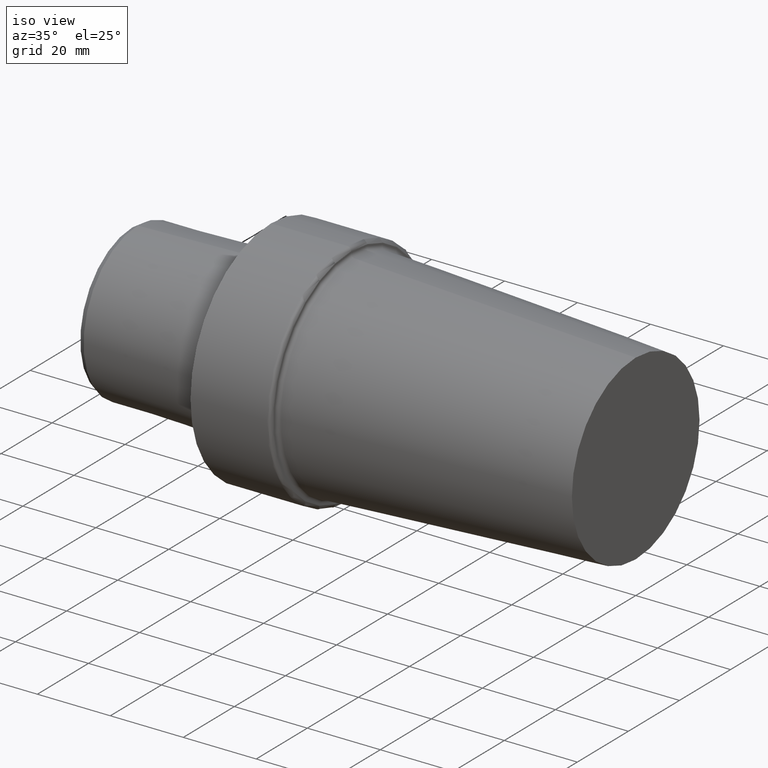
[diagram: clean part render]
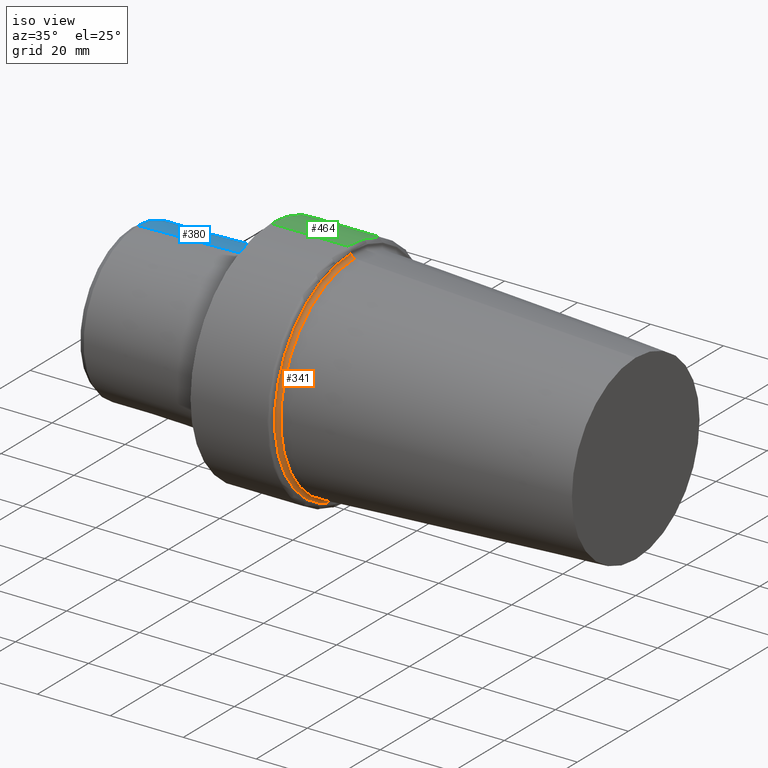
[diagram: same view with three faces highlighted in distinct colors, each labeled with its STEP entity id]
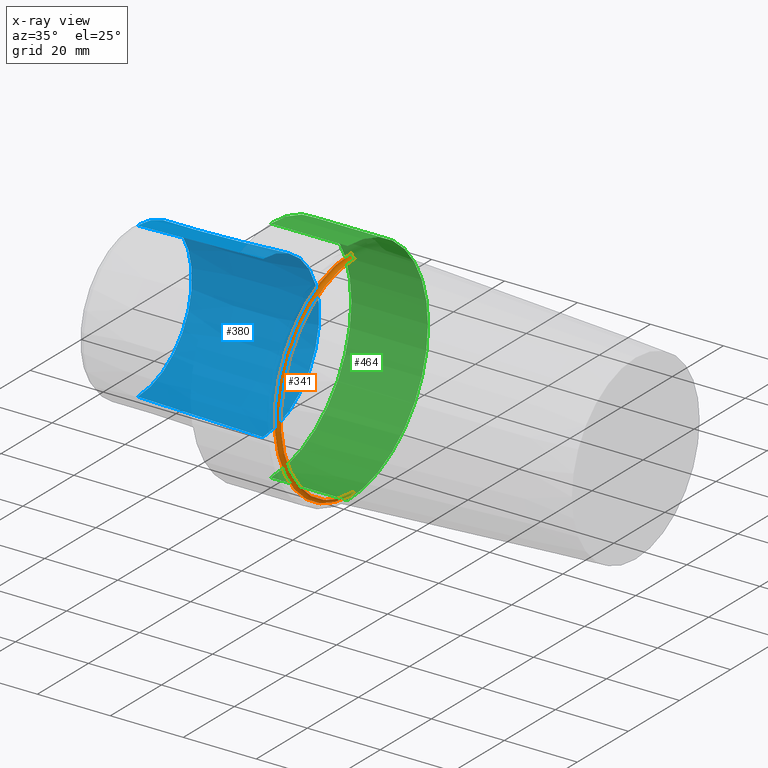
[diagram: x-ray of the same camera — body ghosted, the three highlighted faces saturated]
A machine part, iso view with three faces highlighted in distinct colors.
The next image is the same camera in x-ray (body ghosted, the three faces saturated) — at least one of them is partly hidden behind the body in this view.
Their STEP definitions:

[orange] entity #341 — the highlighted toroidal blend (fillet) surface has major radius 29.95 mm and minor (blend) radius 1 mm.
#7 = FACE_OUTER_BOUND ( 'NONE', #313, .T. ) ;
#18 = DIRECTION ( 'NONE',  ( 0.000000000000000000, 0.000000000000000000, -1.000000000000000000 ) ) ;
#23 = CARTESIAN_POINT ( 'NONE',  ( 22.99999997490129999, 0.000000000000000000, 29.95003198586706716 ) ) ;
#24 = CIRCLE ( 'NONE', #217, 0.9999999989800008038 ) ;
#30 = CIRCLE ( 'NONE', #281, 0.9999999989800008038 ) ;
#34 = CIRCLE ( 'NONE', #532, 29.95003198228931396 ) ;
#42 = AXIS2_PLACEMENT_3D ( 'NONE', #128, #299, #91 ) ;
#58 = CIRCLE ( 'NONE', #116, 28.95134432330797480 ) ;
#91 = DIRECTION ( 'NONE',  ( 0.000000000000000000, 0.000000000000000000, 1.000000000000000000 ) ) ;
#94 = EDGE_CURVE ( 'NONE', #156, #395, #58, .T. ) ;
#95 = DIRECTION ( 'NONE',  ( 0.000000000000000000, 0.000000000000000000, 1.000000000000000000 ) ) ;
#99 = DIRECTION ( 'NONE',  ( -1.000000000000000000, 0.000000000000000000, 0.000000000000000000 ) ) ;
#103 = CARTESIAN_POINT ( 'NONE',  ( 21.99999997592130185, 0.000000000000000000, 0.000000000000000000 ) ) ;
#116 = AXIS2_PLACEMENT_3D ( 'NONE', #389, #427, #203 ) ;
#128 = CARTESIAN_POINT ( 'NONE',  ( 22.99999997490129999, 0.000000000000000000, 0.000000000000000000 ) ) ;
#156 = VERTEX_POINT ( 'NONE', #505 ) ;
#171 = CARTESIAN_POINT ( 'NONE',  ( 22.94878522495353579, 0.000000000000000000, 28.95134432330797480 ) ) ;
#191 = ORIENTED_EDGE ( 'NONE', *, *, #500, .T. ) ;
#203 = DIRECTION ( 'NONE',  ( 0.000000000000000000, 0.000000000000000000, 1.000000000000000000 ) ) ;
#215 = CARTESIAN_POINT ( 'NONE',  ( 21.99999997592130185, 0.000000000000000000, 29.95003198407817280 ) ) ;
#216 = VERTEX_POINT ( 'NONE', #215 ) ;
#217 = AXIS2_PLACEMENT_3D ( 'NONE', #23, #354, #18 ) ;
#257 = EDGE_CURVE ( 'NONE', #444, #216, #34, .T. ) ;
#270 = DIRECTION ( 'NONE',  ( 0.000000000000000000, -1.224646799147354193E-16, 1.000000000000000000 ) ) ;
#280 = ORIENTED_EDGE ( 'NONE', *, *, #370, .F. ) ;
#281 = AXIS2_PLACEMENT_3D ( 'NONE', #526, #306, #270 ) ;
#299 = DIRECTION ( 'NONE',  ( -1.000000000000000000, 0.000000000000000000, 0.000000000000000000 ) ) ;
#306 = DIRECTION ( 'NONE',  ( 0.000000000000000000, 1.000000000000000000, 1.224646799147355919E-16 ) ) ;
#313 = EDGE_LOOP ( 'NONE', ( #531, #191, #373, #280 ) ) ;
#314 = TOROIDAL_SURFACE ( 'NONE', #42, 29.95003198586706716, 0.9999999989799999156 ) ;
#341 = ADVANCED_FACE ( 'NONE', ( #7 ), #314, .F. ) ;
#354 = DIRECTION ( 'NONE',  ( 0.000000000000000000, -1.000000000000000000, 0.000000000000000000 ) ) ;
#370 = EDGE_CURVE ( 'NONE', #216, #395, #24, .T. ) ;
#373 = ORIENTED_EDGE ( 'NONE', *, *, #94, .T. ) ;
#389 = CARTESIAN_POINT ( 'NONE',  ( 22.94878522495353579, 0.000000000000000000, 0.000000000000000000 ) ) ;
#395 = VERTEX_POINT ( 'NONE', #171 ) ;
#427 = DIRECTION ( 'NONE',  ( -1.000000000000000000, 0.000000000000000000, 0.000000000000000000 ) ) ;
#444 = VERTEX_POINT ( 'NONE', #490 ) ;
#490 = CARTESIAN_POINT ( 'NONE',  ( 21.99999997592130185, 3.667821080366219517E-15, -29.95003198407817280 ) ) ;
#500 = EDGE_CURVE ( 'NONE', #444, #156, #30, .T. ) ;
#505 = CARTESIAN_POINT ( 'NONE',  ( 22.94878522495353579, 3.545517115655198089E-15, -28.95134432330797480 ) ) ;
#526 = CARTESIAN_POINT ( 'NONE',  ( 22.99999997490129999, 3.667821080585294079E-15, -29.95003198586706716 ) ) ;
#531 = ORIENTED_EDGE ( 'NONE', *, *, #257, .F. ) ;
#532 = AXIS2_PLACEMENT_3D ( 'NONE', #103, #99, #95 ) ;

[blue] entity #380 — the highlighted conical surface has half-angle 1.432 deg.
#5 = CARTESIAN_POINT ( 'NONE',  ( -2.199999999394708361, 2.702891790757786195E-15, 22.07078639032614120 ) ) ;
#10 = VECTOR ( 'NONE', #336, 1000.000000000000114 ) ;
#29 = VERTEX_POINT ( 'NONE', #107 ) ;
#33 = ORIENTED_EDGE ( 'NONE', *, *, #518, .T. ) ;
#35 = VERTEX_POINT ( 'NONE', #44 ) ;
#44 = CARTESIAN_POINT ( 'NONE',  ( -36.49999996440870120, 0.000000000000000000, -21.21334400120073482 ) ) ;
#46 = DIRECTION ( 'NONE',  ( 0.9996876883571774730, 3.060455192797006293E-18, 0.02499051314164881313 ) ) ;
#48 = DIRECTION ( 'NONE',  ( -1.000000000000000000, 0.000000000000000000, 0.000000000000000000 ) ) ;
#49 = LINE ( 'NONE', #379, #10 ) ;
#107 = CARTESIAN_POINT ( 'NONE',  ( -2.199999999394708361, 0.000000000000000000, 22.07078639032614120 ) ) ;
#122 = EDGE_CURVE ( 'NONE', #194, #35, #348, .T. ) ;
#129 = LINE ( 'NONE', #5, #437 ) ;
#133 = CIRCLE ( 'NONE', #349, 22.07078639032614120 ) ;
#138 = CARTESIAN_POINT ( 'NONE',  ( -2.199999999394708361, 0.000000000000000000, 0.000000000000000000 ) ) ;
#142 = DIRECTION ( 'NONE',  ( -1.000000000000000000, 0.000000000000000000, 0.000000000000000000 ) ) ;
#160 = EDGE_CURVE ( 'NONE', #194, #29, #129, .T. ) ;
#162 = CARTESIAN_POINT ( 'NONE',  ( -36.49999996440870120, 2.650388586893000642E-15, 21.21334400120073482 ) ) ;
#175 = EDGE_CURVE ( 'NONE', #35, #483, #49, .T. ) ;
#184 = ORIENTED_EDGE ( 'NONE', *, *, #160, .T. ) ;
#194 = VERTEX_POINT ( 'NONE', #162 ) ;
#262 = AXIS2_PLACEMENT_3D ( 'NONE', #138, #284, #519 ) ;
#284 = DIRECTION ( 'NONE',  ( 1.000000000000000000, 0.000000000000000000, 0.000000000000000000 ) ) ;
#287 = CARTESIAN_POINT ( 'NONE',  ( -36.49999996440870120, 0.000000000000000000, 0.000000000000000000 ) ) ;
#315 = CARTESIAN_POINT ( 'NONE',  ( -2.199999999394708361, 2.702891790757786195E-15, -22.07078639032614120 ) ) ;
#336 = DIRECTION ( 'NONE',  ( 0.9996876883571774730, 0.000000000000000000, -0.02499051314164881313 ) ) ;
#340 = FACE_OUTER_BOUND ( 'NONE', #476, .T. ) ;
#348 = CIRCLE ( 'NONE', #372, 21.21334400120073482 ) ;
#349 = AXIS2_PLACEMENT_3D ( 'NONE', #489, #142, #350 ) ;
#350 = DIRECTION ( 'NONE',  ( 0.000000000000000000, 0.000000000000000000, 1.000000000000000000 ) ) ;
#372 = AXIS2_PLACEMENT_3D ( 'NONE', #287, #48, #386 ) ;
#379 = CARTESIAN_POINT ( 'NONE',  ( -2.199999999394708361, 0.000000000000000000, -22.07078639032614120 ) ) ;
#380 = ADVANCED_FACE ( 'NONE', ( #340 ), #399, .T. ) ;
#386 = DIRECTION ( 'NONE',  ( 0.000000000000000000, 0.000000000000000000, 1.000000000000000000 ) ) ;
#399 = CONICAL_SURFACE ( 'NONE', #262, 22.07078639032614120, 0.02499311507610003230 ) ;
#437 = VECTOR ( 'NONE', #46, 1000.000000000000114 ) ;
#453 = ORIENTED_EDGE ( 'NONE', *, *, #175, .F. ) ;
#461 = ORIENTED_EDGE ( 'NONE', *, *, #122, .F. ) ;
#476 = EDGE_LOOP ( 'NONE', ( #461, #184, #33, #453 ) ) ;
#483 = VERTEX_POINT ( 'NONE', #315 ) ;
#489 = CARTESIAN_POINT ( 'NONE',  ( -2.199999999394708361, 0.000000000000000000, 0.000000000000000000 ) ) ;
#518 = EDGE_CURVE ( 'NONE', #29, #483, #133, .T. ) ;
#519 = DIRECTION ( 'NONE',  ( 0.000000000000000000, 0.000000000000000000, -1.000000000000000000 ) ) ;

[green] entity #464 — the highlighted cylindrical surface (partial cylindrical patch) has radius 31.4925 mm, axis along (-1, 0, 0).
#12 = CARTESIAN_POINT ( 'NONE',  ( 20.99999997694130016, 0.000000000000000000, 31.49249997071599338 ) ) ;
#15 = DIRECTION ( 'NONE',  ( -1.000000000000000000, 0.000000000000000000, 0.000000000000000000 ) ) ;
#17 = CARTESIAN_POINT ( 'NONE',  ( -1.638711037459195739E-09, 0.000000000000000000, 0.000000000000000000 ) ) ;
#19 = ORIENTED_EDGE ( 'NONE', *, *, #86, .T. ) ;
#45 = EDGE_CURVE ( 'NONE', #375, #377, #117, .T. ) ;
#53 = CIRCLE ( 'NONE', #328, 31.49249997071599338 ) ;
#61 = FACE_OUTER_BOUND ( 'NONE', #337, .T. ) ;
#67 = DIRECTION ( 'NONE',  ( 0.000000000000000000, 0.000000000000000000, 1.000000000000000000 ) ) ;
#86 = EDGE_CURVE ( 'NONE', #488, #255, #342, .T. ) ;
#96 = DIRECTION ( 'NONE',  ( 0.000000000000000000, 0.000000000000000000, 1.000000000000000000 ) ) ;
#117 = LINE ( 'NONE', #528, #420 ) ;
#136 = CIRCLE ( 'NONE', #422, 31.49249997071599338 ) ;
#149 = DIRECTION ( 'NONE',  ( -1.000000000000000000, 0.000000000000000000, 0.000000000000000000 ) ) ;
#152 = DIRECTION ( 'NONE',  ( -1.000000000000000000, 0.000000000000000000, 0.000000000000000000 ) ) ;
#224 = CYLINDRICAL_SURFACE ( 'NONE', #250, 31.49249997071599338 ) ;
#247 = CARTESIAN_POINT ( 'NONE',  ( 20.99999997694130016, 0.000000000000000000, 0.000000000000000000 ) ) ;
#250 = AXIS2_PLACEMENT_3D ( 'NONE', #320, #408, #67 ) ;
#255 = VERTEX_POINT ( 'NONE', #308 ) ;
#303 = DIRECTION ( 'NONE',  ( 0.000000000000000000, 0.000000000000000000, 1.000000000000000000 ) ) ;
#308 = CARTESIAN_POINT ( 'NONE',  ( -1.638711037459195739E-09, 3.856718928628543502E-15, -31.49249997071599338 ) ) ;
#319 = ORIENTED_EDGE ( 'NONE', *, *, #504, .F. ) ;
#320 = CARTESIAN_POINT ( 'NONE',  ( -37.99999996124000035, 0.000000000000000000, 0.000000000000000000 ) ) ;
#328 = AXIS2_PLACEMENT_3D ( 'NONE', #17, #149, #96 ) ;
#337 = EDGE_LOOP ( 'NONE', ( #352, #19, #319, #412 ) ) ;
#339 = VECTOR ( 'NONE', #425, 1000.000000000000000 ) ;
#342 = LINE ( 'NONE', #510, #339 ) ;
#352 = ORIENTED_EDGE ( 'NONE', *, *, #362, .T. ) ;
#362 = EDGE_CURVE ( 'NONE', #375, #488, #136, .T. ) ;
#375 = VERTEX_POINT ( 'NONE', #12 ) ;
#377 = VERTEX_POINT ( 'NONE', #509 ) ;
#396 = CARTESIAN_POINT ( 'NONE',  ( 20.99999997694130016, 3.856718928628543502E-15, -31.49249997071599338 ) ) ;
#408 = DIRECTION ( 'NONE',  ( -1.000000000000000000, 0.000000000000000000, 0.000000000000000000 ) ) ;
#412 = ORIENTED_EDGE ( 'NONE', *, *, #45, .F. ) ;
#420 = VECTOR ( 'NONE', #152, 1000.000000000000000 ) ;
#422 = AXIS2_PLACEMENT_3D ( 'NONE', #247, #15, #303 ) ;
#425 = DIRECTION ( 'NONE',  ( -1.000000000000000000, 0.000000000000000000, 0.000000000000000000 ) ) ;
#464 = ADVANCED_FACE ( 'NONE', ( #61 ), #224, .T. ) ;
#488 = VERTEX_POINT ( 'NONE', #396 ) ;
#504 = EDGE_CURVE ( 'NONE', #377, #255, #53, .T. ) ;
#509 = CARTESIAN_POINT ( 'NONE',  ( -1.638711037459195739E-09, 0.000000000000000000, 31.49249997071599338 ) ) ;
#510 = CARTESIAN_POINT ( 'NONE',  ( -37.99999996124000035, 3.856718928628543502E-15, -31.49249997071599338 ) ) ;
#528 = CARTESIAN_POINT ( 'NONE',  ( -37.99999996124000035, 0.000000000000000000, 31.49249997071599338 ) ) ;